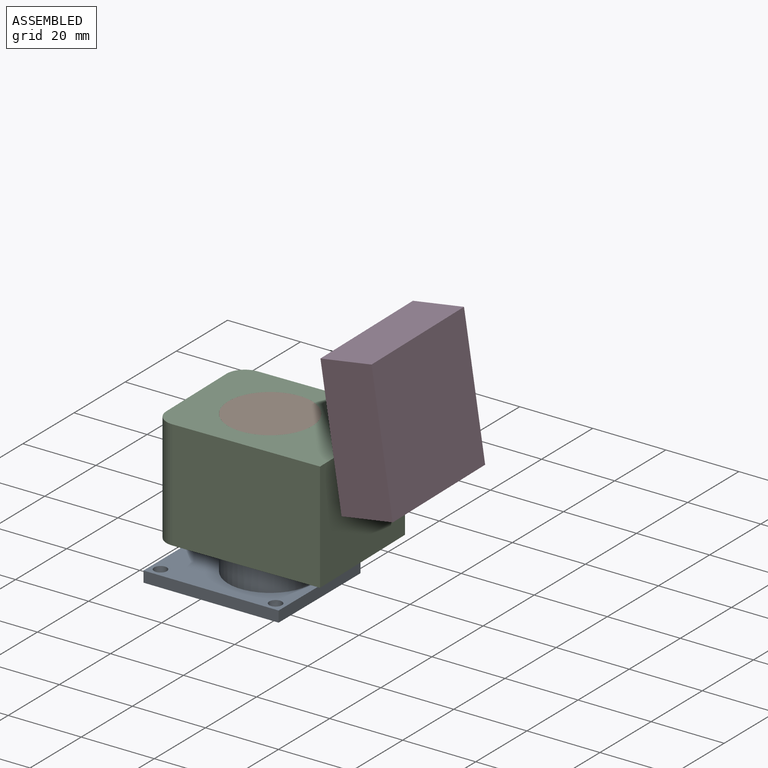
[diagram: assembled view]
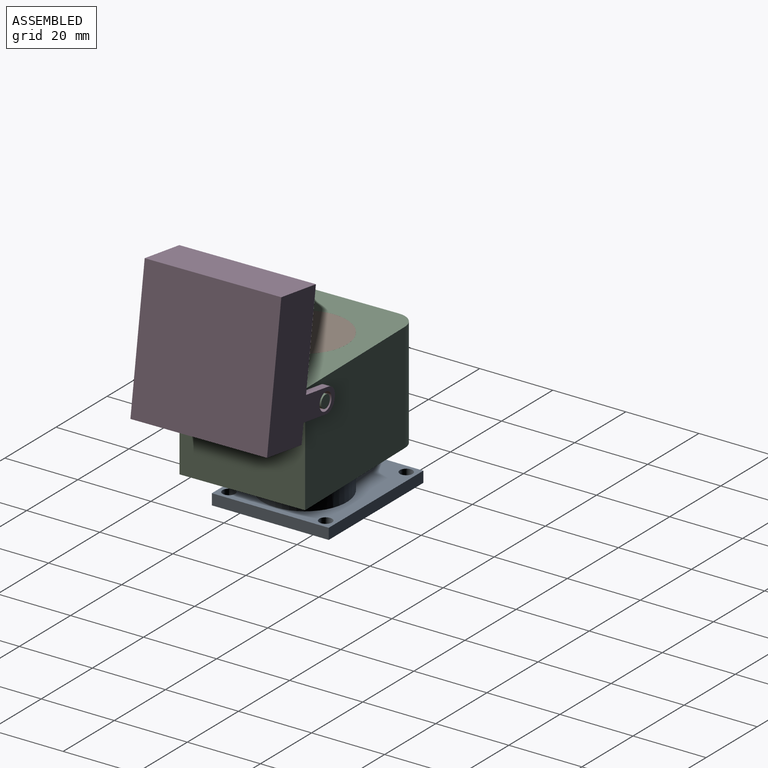
[diagram: assembled view, second angle]
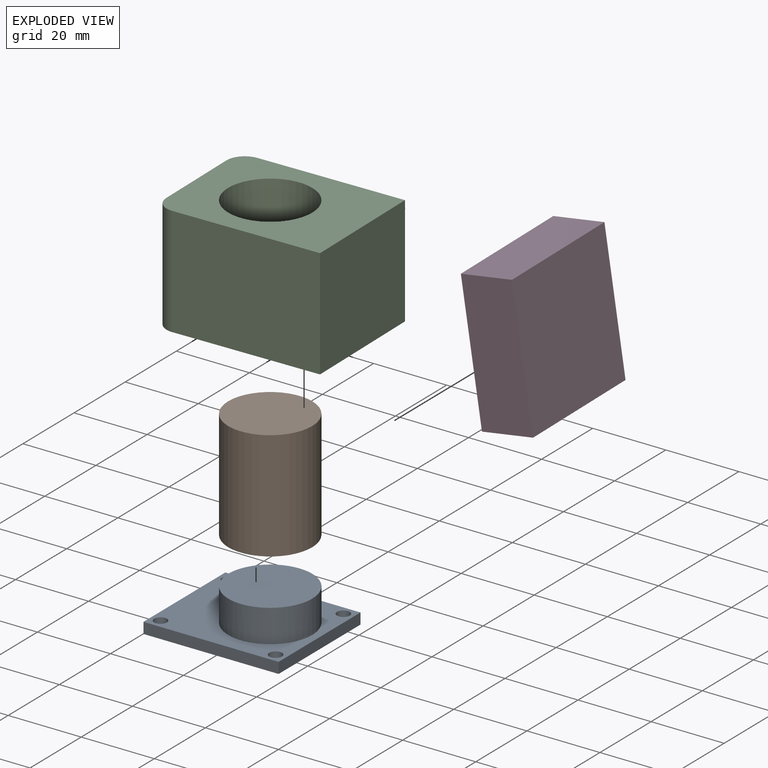
[diagram: exploded view]
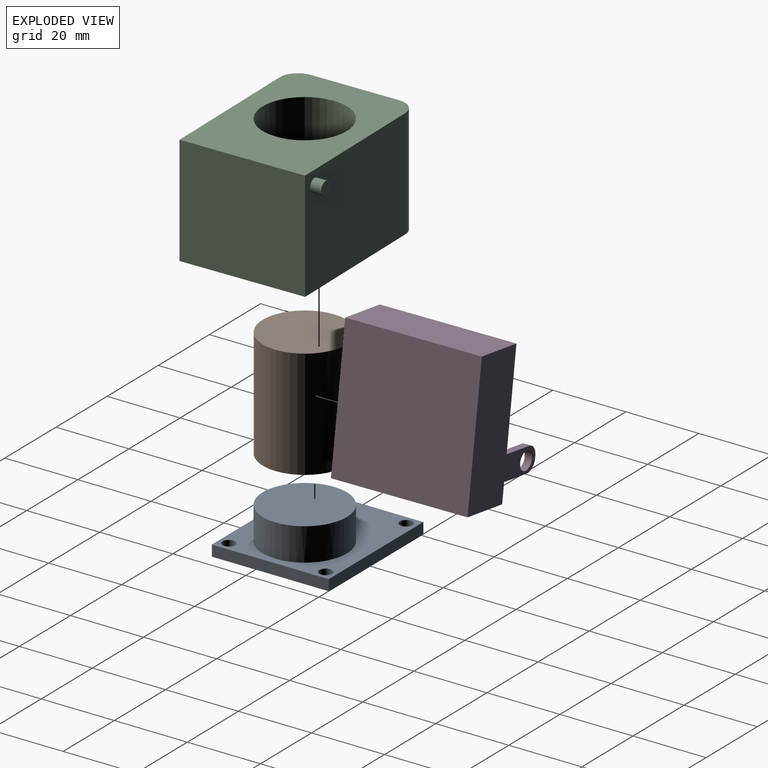
[diagram: exploded view, second angle]
ASSEMBLY  parts=4 mates=3
PART A: 12 faces, bbox 37x32x12 mm
  f0: plane 32x3mm, normal (-1,0,0), area 96mm2, adj f1,f4,f8,f9
  f1: plane 37x3mm, normal (0,-1,0), area 111mm2, adj f0,f2,f8,f9
  f2: plane 32x3mm, normal (1,0,0), area 96mm2, adj f1,f4,f8,f9
  f3: cylinder r=1.75mm len=3.5mm, axis (0,0,-1), area 33mm2, adj f8,f9
  f4: plane 37x3mm, normal (0,1,0), area 111mm2, adj f0,f2,f8,f9
  f5: cylinder r=1.75mm len=3.5mm, axis (0,0,-1), area 33mm2, adj f8,f9
  f6: cylinder r=1.75mm len=3.5mm, axis (0,0,-1), area 33mm2, adj f8,f9
  f7: cylinder r=1.75mm len=3.5mm, axis (0,0,-1), area 33mm2, adj f8,f9
  f8: plane 37x32mm, normal (0,0,1), area 730mm2, adj f0,f1,f2,f3,f4,f5,f6,f7
  f9: plane 37x32mm, normal (0,0,-1), area 1145.5mm2, adj f0,f1,f2,f3,f4,f5,f6,f7
  f10: cylinder r=11.5mm len=23mm, axis (0,0,-1), area 650.3mm2, adj f8,f11
  f11: plane 23.01x23.01mm, normal (0,0,1), area 415.5mm2, adj f10
PART B: 3 faces, bbox 23x23x30 mm
  f0: cylinder r=11.49mm len=30mm, axis (0,0,-1), area 2165.9mm2, adj f1,f2
  f1: plane 22.98x22.98mm, normal (0,0,1), area 414.8mm2, adj f0
  f2: plane 22.98x22.98mm, normal (0,0,-1), area 414.8mm2, adj f0
PART C: 11 faces, bbox 45x37x30 mm
  f0: plane 30x24mm, normal (-1,0,0), area 720mm2, adj f5,f6,f9,f10
  f1: plane 40x30mm, normal (0,-1,0), area 1200mm2, adj f2,f5,f6,f10
  f2: plane 34x30mm, normal (1,0,0), area 1020mm2, adj f1,f4,f5,f6
  f3: cylinder r=11.5mm len=30mm, axis (0,0,-1), area 2167.7mm2, adj f5,f6
  f4: plane 40x30mm, normal (0,1,0), area 1190.4mm2, adj f2,f5,f6,f7,f9
  f5: plane 45x34mm, normal (0,0,1), area 1103.8mm2, adj f0,f1,f2,f3,f4,f9,f10
  f6: plane 45x34mm, normal (0,0,-1), area 1103.8mm2, adj f0,f1,f2,f3,f4,f9,f10
  f7: cylinder r=1.75mm len=3.5mm, axis (0,-1,0), area 33mm2, adj f4,f8
  f8: plane 3.5x3.5mm, normal (0,1,0), area 9.6mm2, adj f7
  f9: cylinder r=5mm len=30mm, axis (0,0,1), area 235.6mm2, adj f0,f4,f5,f6
  f10: cylinder r=5mm len=30mm, axis (0,0,-1), area 235.6mm2, adj f0,f1,f5,f6
PART D: 13 faces, bbox 26.1x37x38 mm
  f0: plane 9.09x2mm, normal (0,0,-1), area 18.2mm2, adj f1,f6,f7,f8
  f1: cylinder r=3mm len=3mm, axis (0,-1,0), area 9.4mm2, adj f0,f2,f6,f7
  f2: plane 2x0.57mm, normal (-1,0,0), area 1.1mm2, adj f1,f3,f6,f7
  f3: cylinder r=3mm len=3mm, axis (0,-1,0), area 9.4mm2, adj f2,f4,f6,f7
  f4: plane 9.09x2mm, normal (0,0,1), area 18.2mm2, adj f3,f6,f7,f8
  f5: cylinder r=2.41mm len=4.82mm, axis (0,-1,0), area 30.3mm2, adj f6,f7
  f6: plane 38x26.09mm, normal (0,1,0), area 589.3mm2, adj f0,f1,f2,f3,f4,f5,f8,f9
  f7: plane 12.09x6.57mm, normal (0,-1,0), area 57.3mm2, adj f0,f1,f2,f3,f4,f5,f8
  f8: plane 38x37mm, normal (-1,0,0), area 1392.9mm2, adj f0,f4,f6,f7,f9,f11,f12
  f9: plane 37x14mm, normal (0,0,1), area 518mm2, adj f6,f8,f10,f12
  f10: plane 38x37mm, normal (1,0,0), area 1406mm2, adj f6,f9,f11,f12
  f11: plane 37x14mm, normal (0,0,-1), area 518mm2, adj f6,f8,f10,f12
  f12: plane 38x14mm, normal (0,-1,0), area 532mm2, adj f8,f9,f10,f11
PLACE A t=(-19.48,6.02,-15.41)mm fixed
PLACE B rot(axis=(0,0,1),0.9deg) t=(-19.48,5.94,-15.41)mm
PLACE C rot(axis=(0,0,1),0.9deg) t=(-19.48,5.94,-15.41)mm
PLACE D rot(axis=(0.01,-0.99,0.1),8.7deg) t=(-13.43,7.03,-18.93)mm
MATE revolute A.f10 <-> B.f0  axis (0,0,1) through (-14.48,6.02,-3.41)mm
MATE revolute C.f7 <-> D.f5  axis (-0.02,1,0) through (6.45,26.35,22.84)mm
MATE fastened B.f0 <-> C.f3  axis (0,0,1) through (-14.48,6.02,26.59)mm
